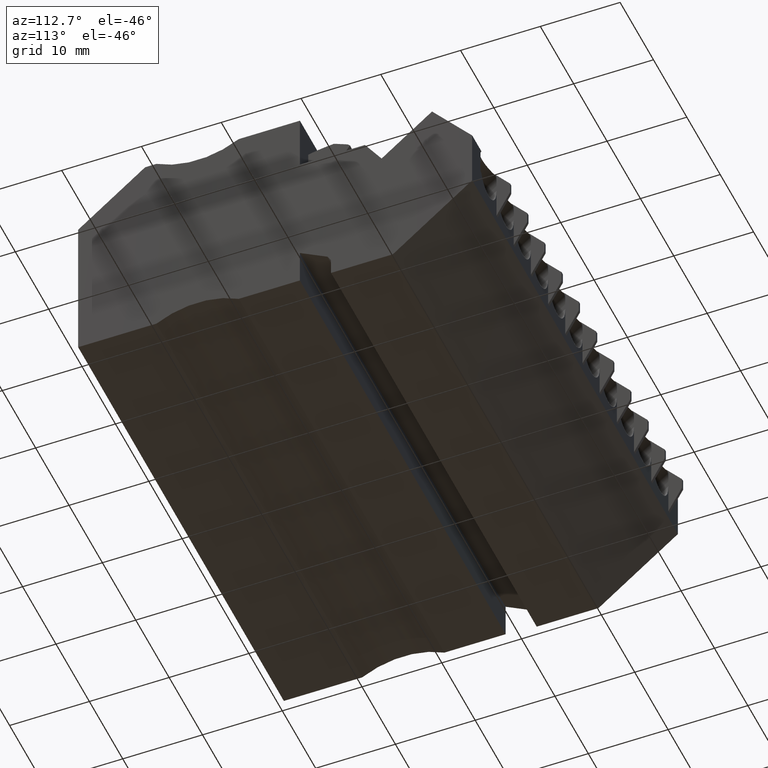
[diagram: clean part render]
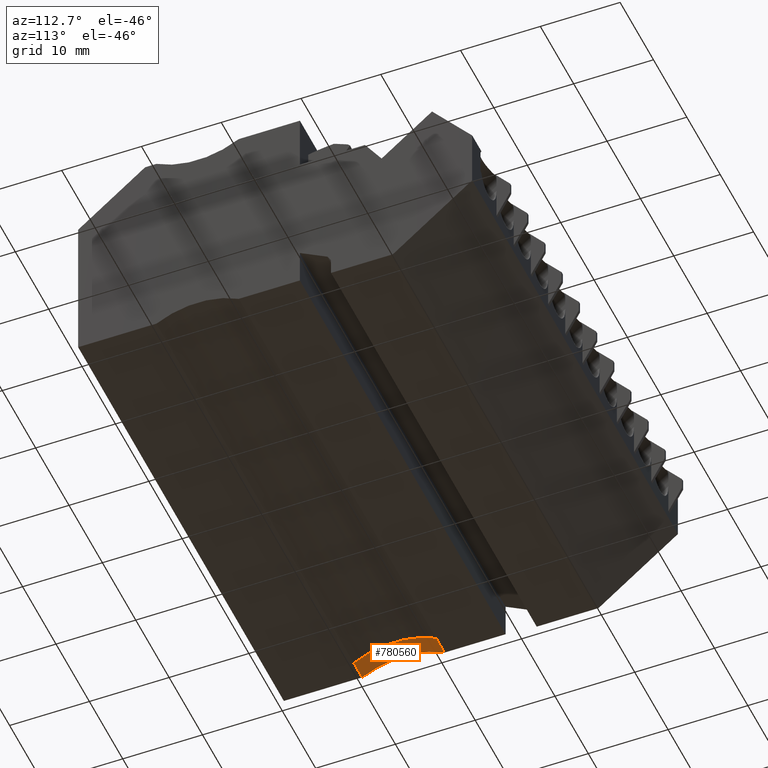
[diagram: same view with one face highlighted and labeled with its STEP entity id]
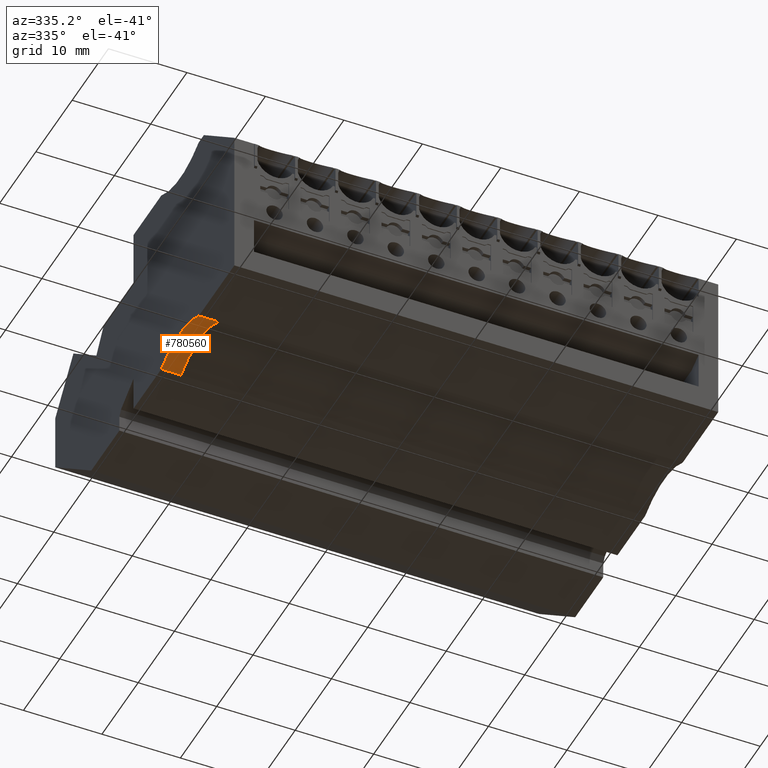
[diagram: same view with one face highlighted and labeled with its STEP entity id]
A machine part, auxiliary view. The second image highlights one B-rep face of the part: STEP entity #780560.
A second angle (auxiliary view) of the same face is appended — the face is thin or edge-on in the first view.
In plain terms, the highlighted cylindrical surface (partial cylindrical patch) has radius 10 mm, axis along (1, -0, -0).
Its self-contained STEP definition (entity closure, byte-faithful):
#16080=CARTESIAN_POINT('',(432.124069232021,670.934347625639,
68.1199999950703));
#16090=DIRECTION('',(-1.20456572490157E-9,-1.,5.82229711732946E-10));
#16100=DIRECTION('',(1.,-1.20456572494379E-9,-7.2511997674725E-11));
#16110=AXIS2_PLACEMENT_3D('',#16080,#16090,#16100);
#16120=PLANE('',#16110);
#16170=CARTESIAN_POINT('',(430.260883767571,670.934347627883,
68.1199999996107));
#16180=VERTEX_POINT('',#16170);
#16230=CARTESIAN_POINT('',(435.425728131586,662.371381859996,
68.1200000035315));
#16240=DIRECTION('',(9.53020395643386E-11,5.69281445938362E-10,1.));
#16250=DIRECTION('',(1.,-1.20456367103121E-9,-9.53018157247533E-11));
#16260=AXIS2_PLACEMENT_3D('',#16230,#16240,#16250);
#16270=CYLINDRICAL_SURFACE('',#16260,10.);
#16280=CARTESIAN_POINT('',(430.260883771781,670.934347626427,
65.6200000012634));
#16290=CARTESIAN_POINT('',(430.260883771805,670.934347626549,
65.8283333344206));
#16300=CARTESIAN_POINT('',(430.26088377183,670.93434762667,
66.0366666675777));
#16310=CARTESIAN_POINT('',(430.260883771854,670.934347626791,
66.2450000007348));
#16320=CARTESIAN_POINT('',(430.260883771878,670.934347626913,
66.4533333338919));
#16330=CARTESIAN_POINT('',(430.260883771903,670.934347627034,
66.6616666670491));
#16340=CARTESIAN_POINT('',(430.260883771927,670.934347627155,
66.8700000002062));
#16350=CARTESIAN_POINT('',(430.260883771951,670.934347627276,
67.0783333333633));
#16360=CARTESIAN_POINT('',(430.260883771976,670.934347627398,
67.2866666665205));
#16370=CARTESIAN_POINT('',(430.260883772,670.934347627519,
67.4949999996776));
#16380=CARTESIAN_POINT('',(430.260883772012,670.93434762758,
67.5991666662562));
#16390=CARTESIAN_POINT('',(430.260883772024,670.93434762764,
67.7033333328347));
#16400=CARTESIAN_POINT('',(430.260883772036,670.934347627701,
67.8074999994133));
#16410=CARTESIAN_POINT('',(430.260883772048,670.934347627762,
67.9116666659918));
#16420=CARTESIAN_POINT('',(430.260883772061,670.934347627822,
68.0158333325704));
#16430=CARTESIAN_POINT('',(430.260883772073,670.934347627883,
68.119999999149));
#16440=B_SPLINE_CURVE_WITH_KNOTS('',3,(#16280,#16290,#16300,#16310,
#16320,#16330,#16340,#16350,#16360,#16370,#16380,#16390,#16400,#16410,
#16420,#16430),.UNSPECIFIED.,.F.,.F.,(4,3,3,3,3,4),(0.,0.62499999947137,
1.24999999894276,1.87499999841414,2.18749999814985,2.49999999788552),
.UNSPECIFIED.);
#16450=SURFACE_CURVE('',#16440,(#16270,#16120),.CURVE_3D.);
#16460=CARTESIAN_POINT('',(430.260883771781,670.934347626427,
65.6199999960708));
#16470=VERTEX_POINT('',#16460);
#16480=EDGE_CURVE('',#16470,#16180,#16450,.T.);
#280960=CARTESIAN_POINT('',(440.590572511543,670.934347613985,
65.6199999948579));
#280970=VERTEX_POINT('',#280960);
#281000=CARTESIAN_POINT('',(440.590572511755,670.934347615424,
68.1199999981644));
#281010=DIRECTION('',(9.53020395643386E-11,5.69281445938362E-10,1.));
#281020=VECTOR('',#281010,1.);
#281030=LINE('',#281000,#281020);
#281040=CARTESIAN_POINT('',(440.590572518647,670.934347611267,
68.1199999988469));
#281050=VERTEX_POINT('',#281040);
#281060=EDGE_CURVE('',#280970,#281050,#281030,.T.);
#580960=CARTESIAN_POINT('',(435.425728131586,662.371381859996,
68.1200000042139));
#580970=DIRECTION('',(9.53020395643386E-11,5.69281445938362E-10,1.));
#580980=DIRECTION('',(1.,-1.20456367103121E-9,-9.53017715541387E-11));
#580990=AXIS2_PLACEMENT_3D('',#580960,#580970,#580980);
#581000=CIRCLE('',#580990,10.);
#581010=EDGE_CURVE('',#281050,#16180,#581000,.T.);
#780440=ORIENTED_EDGE('',*,*,#281060,.T.);
#780450=CARTESIAN_POINT('',(435.425728131347,662.371381858572,
65.6200000002241));
#780460=DIRECTION('',(1.17410559961435E-10,5.5584020857613E-10,1.));
#780470=DIRECTION('',(-0.70710678033479,0.707106782038305,
-3.10016884805469E-10));
#780480=AXIS2_PLACEMENT_3D('',#780450,#780460,#780470);
#780490=CIRCLE('',#780480,10.);
#780500=EDGE_CURVE('',#280970,#16470,#780490,.T.);
#780510=ORIENTED_EDGE('',*,*,#780500,.F.);
#780520=ORIENTED_EDGE('',*,*,#16480,.F.);
#780530=ORIENTED_EDGE('',*,*,#581010,.T.);
#780540=EDGE_LOOP('',(#780530,#780520,#780510,#780440));
#780550=FACE_OUTER_BOUND('',#780540,.T.);
#780560=ADVANCED_FACE('',(#780550),#16270,.F.);